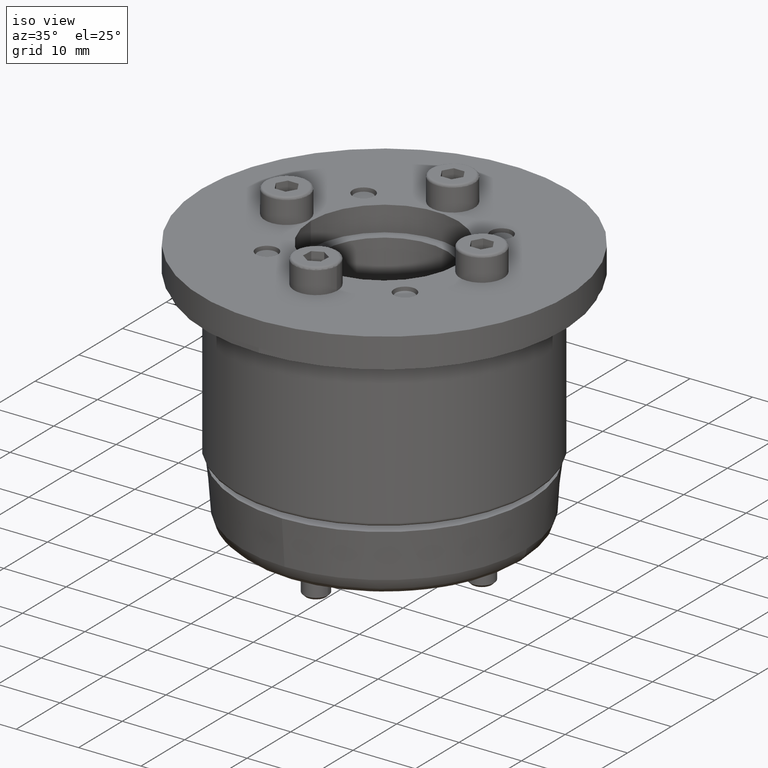
[diagram: clean part render]
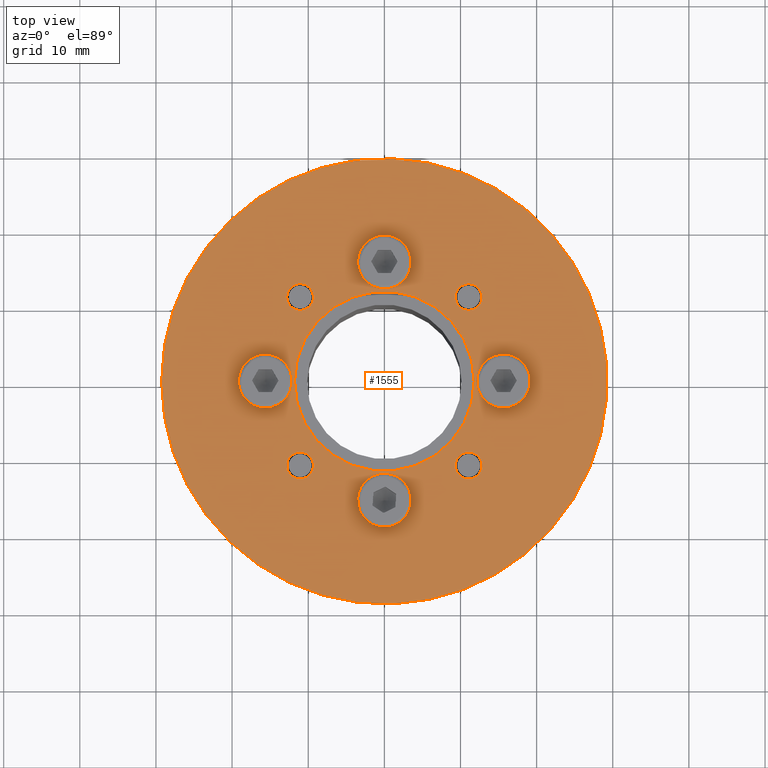
[diagram: tour spotlight — one face highlighted and labeled with its STEP entity id]
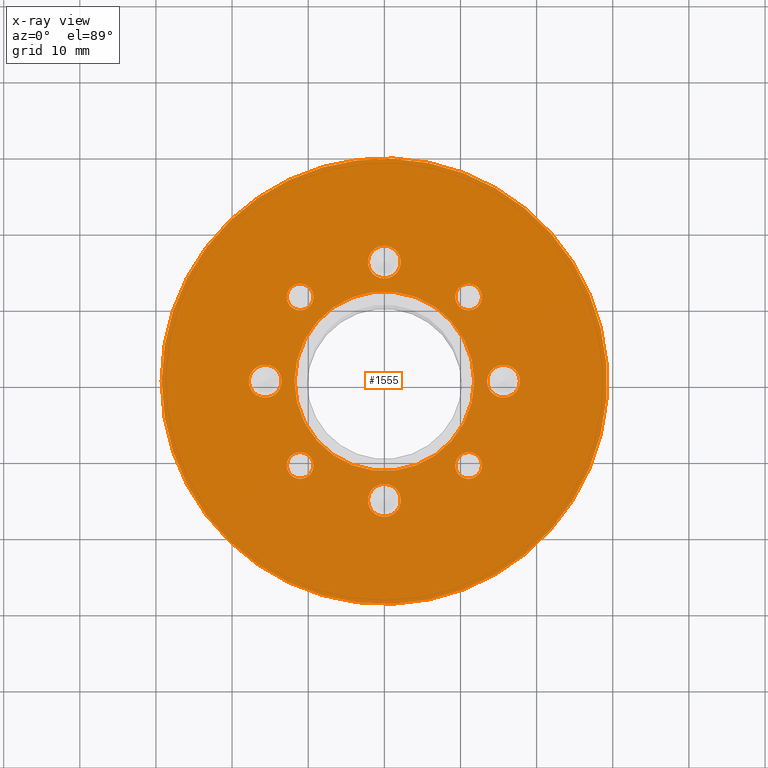
[diagram: x-ray of the same camera — body ghosted, this tour face saturated]
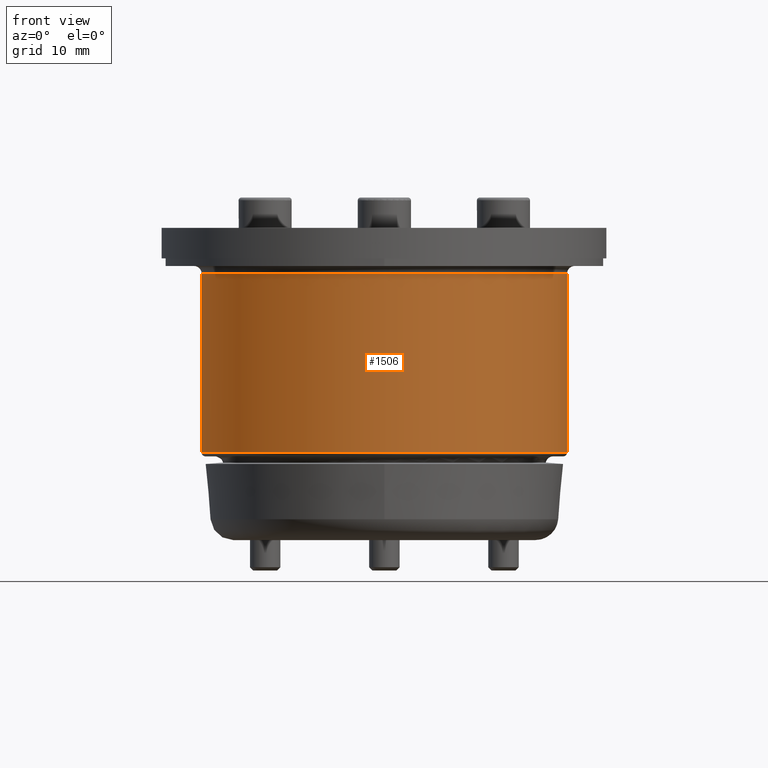
[diagram: tour spotlight — one face highlighted and labeled with its STEP entity id]
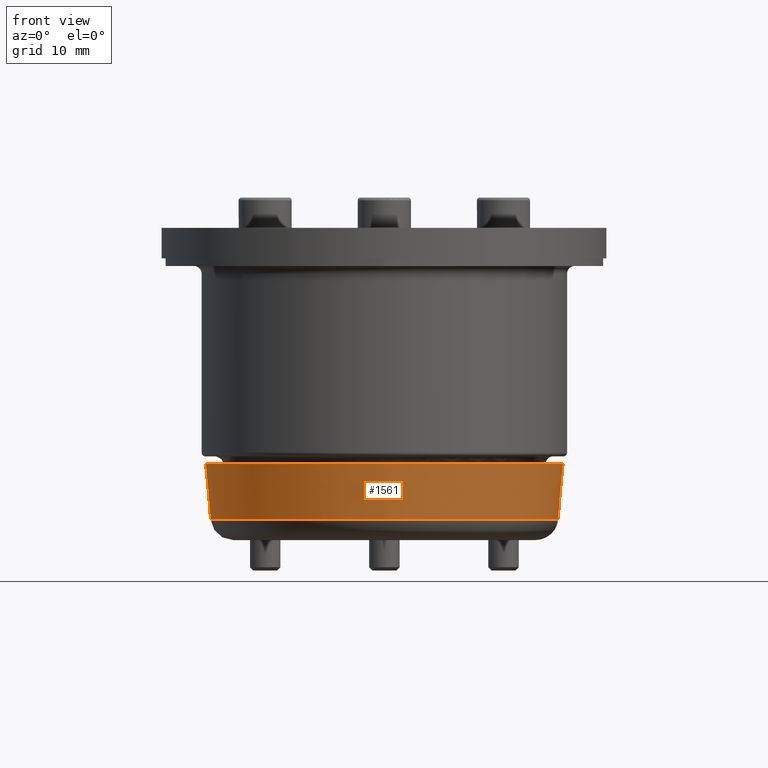
[diagram: tour spotlight — one face highlighted and labeled with its STEP entity id]
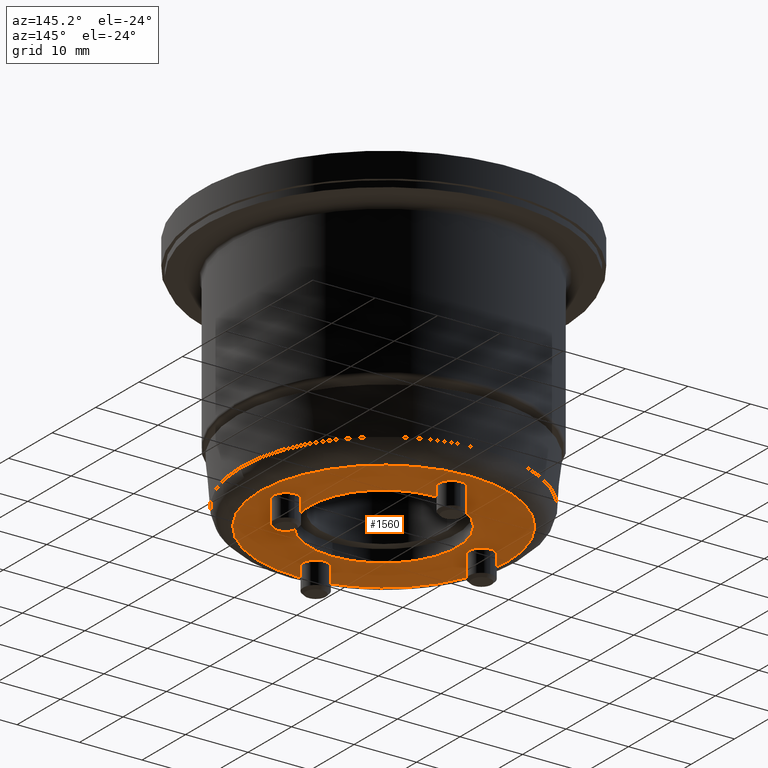
[diagram: tour spotlight — one face highlighted and labeled with its STEP entity id]
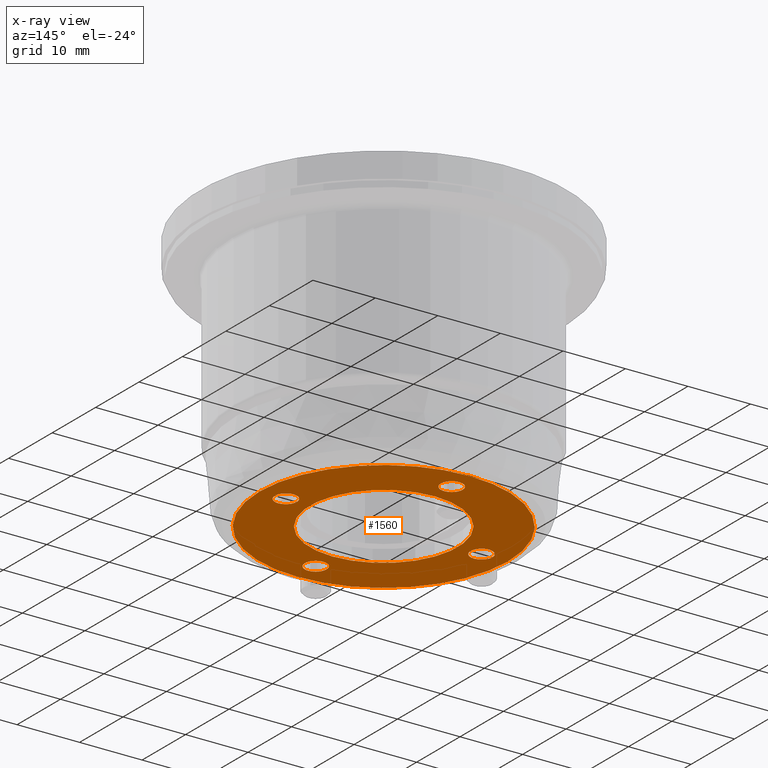
[diagram: x-ray of the same camera — body ghosted, this tour face saturated]
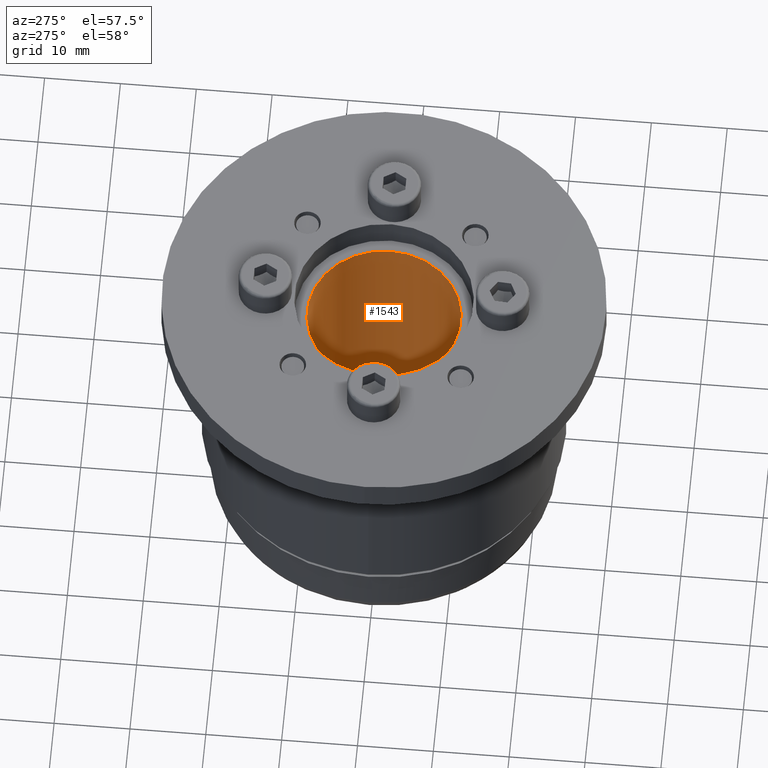
[diagram: tour spotlight — one face highlighted and labeled with its STEP entity id]
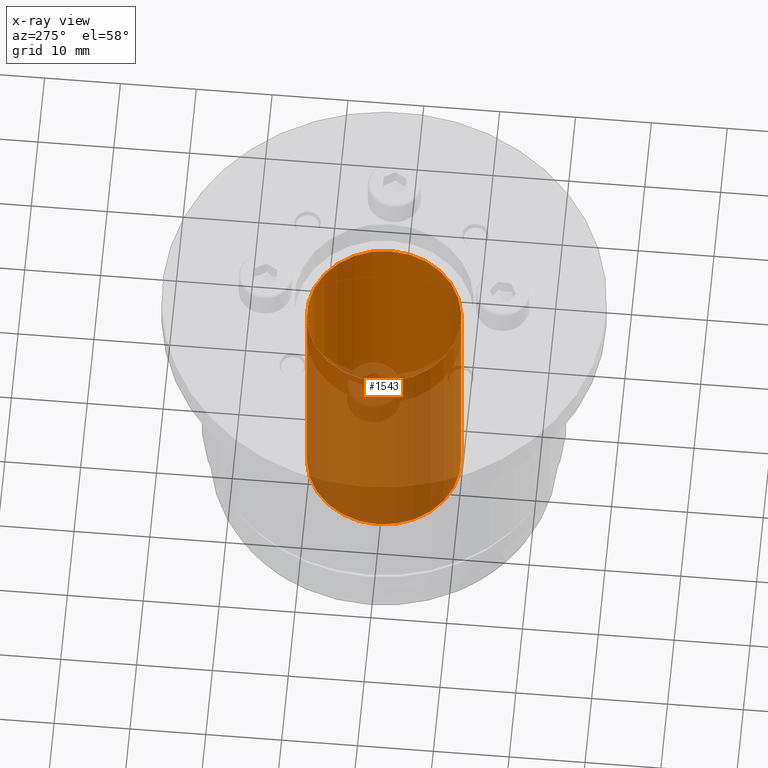
[diagram: x-ray of the same camera — body ghosted, this tour face saturated]
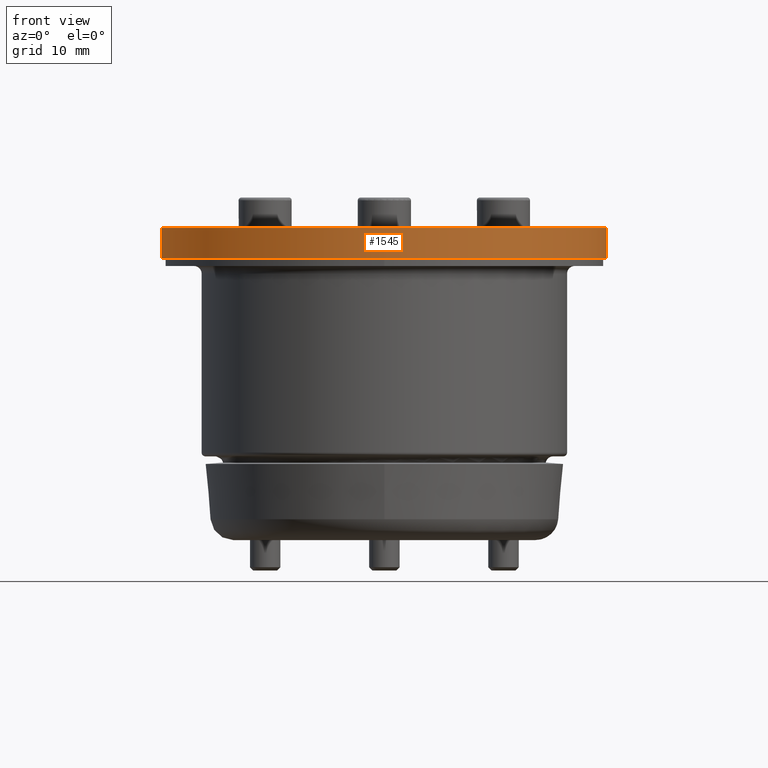
[diagram: tour spotlight — one face highlighted and labeled with its STEP entity id]
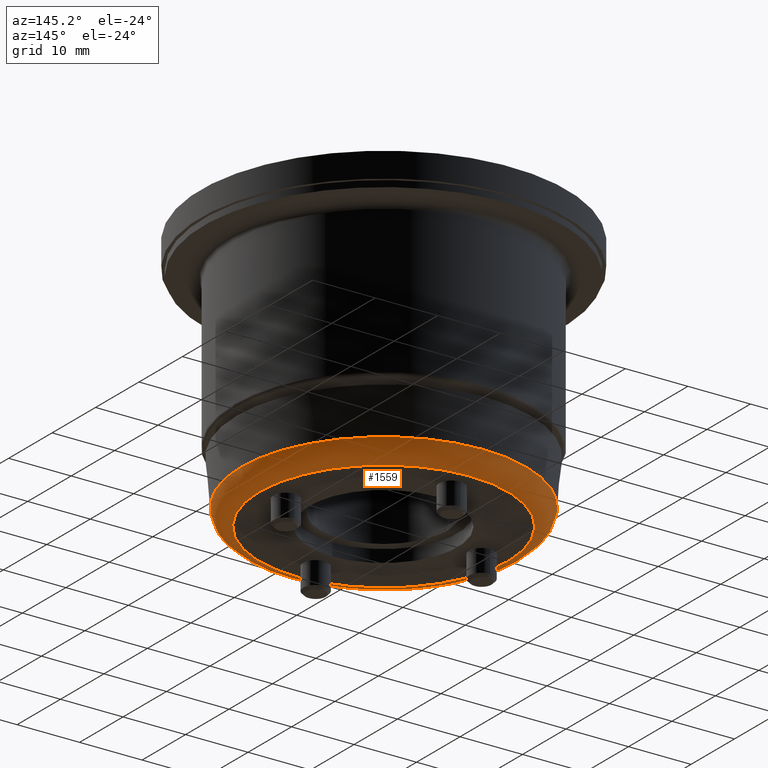
[diagram: tour spotlight — one face highlighted and labeled with its STEP entity id]
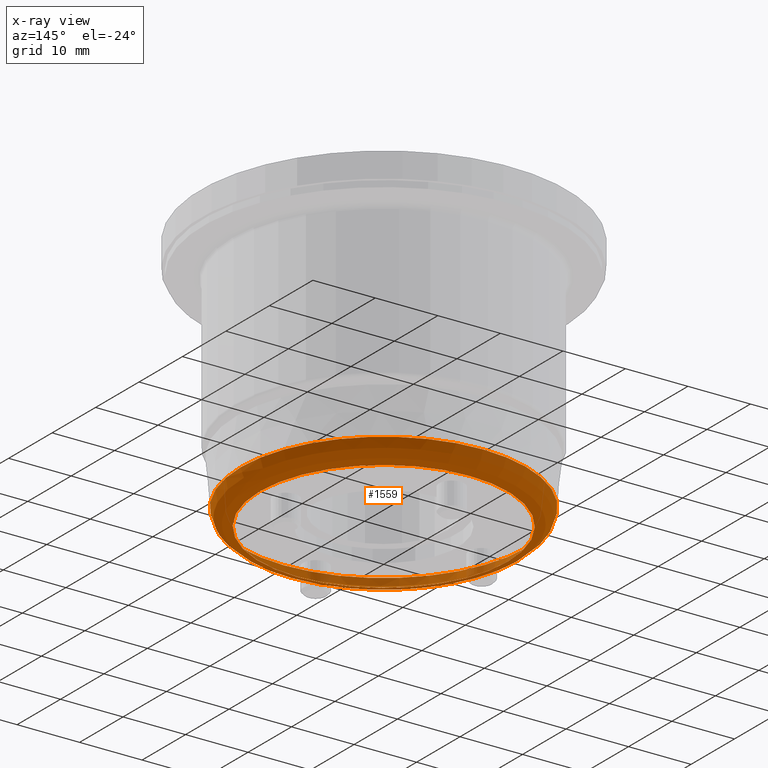
[diagram: x-ray of the same camera — body ghosted, this tour face saturated]
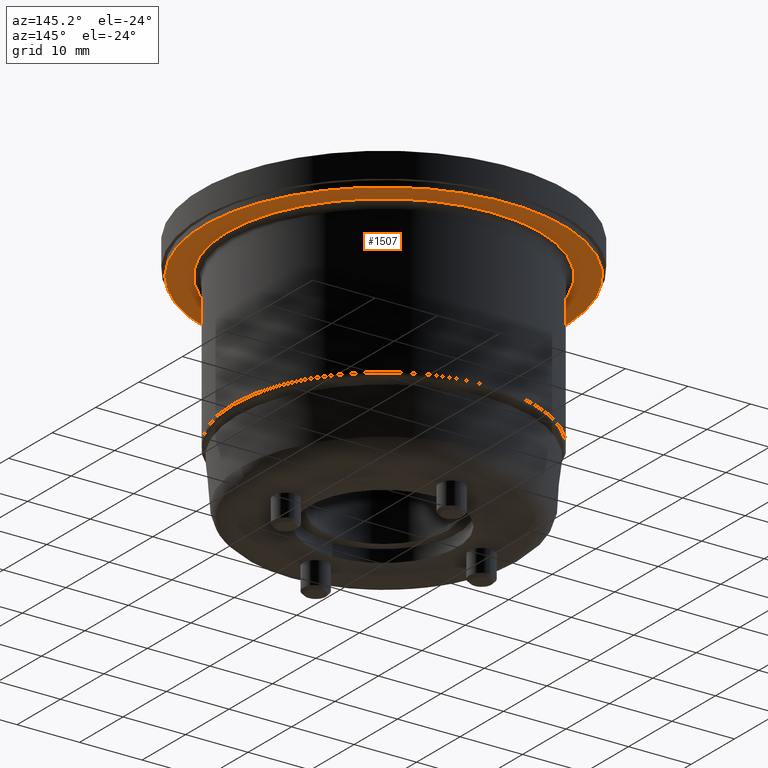
[diagram: tour spotlight — one face highlighted and labeled with its STEP entity id]
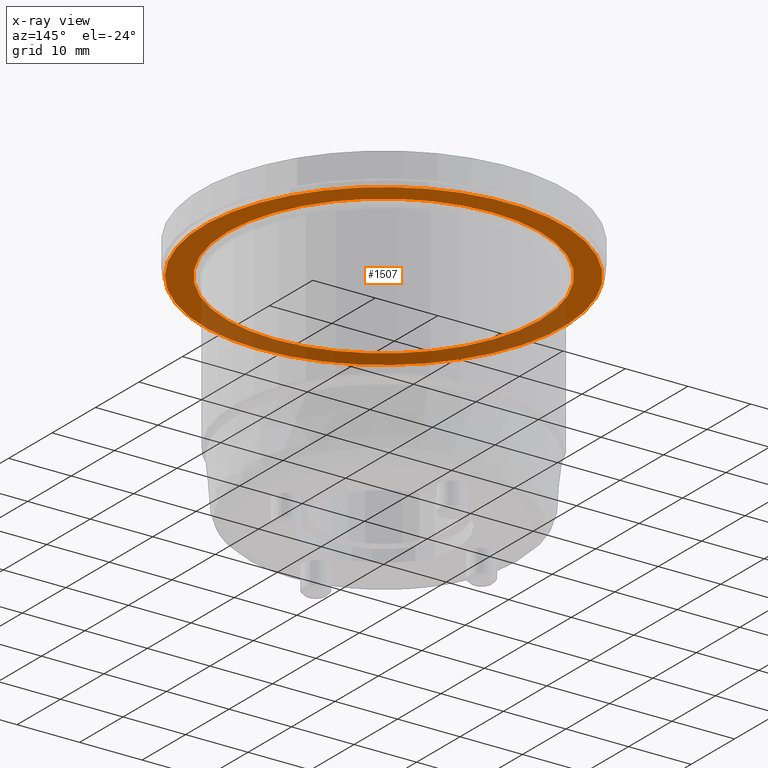
[diagram: x-ray of the same camera — body ghosted, this tour face saturated]
A machine part: a face-by-face anatomy tour. The part has 128 B-rep faces; the first image is the clean iso view, then the 8 largest visible faces are spotlighted one at a time (largest first), each with its STEP entity span.

Face 1 — top view, entity #1555. An x-ray twin of the same camera follows (body ghosted, this face saturated) — the face is partly hidden behind the body. In plain terms, the highlighted planar face has unit normal (-0, 0, 1).
Definition (entity closure, byte-faithful):
#127=FACE_BOUND('',#471,.T.);
#128=FACE_BOUND('',#472,.T.);
#129=FACE_BOUND('',#473,.T.);
#130=FACE_BOUND('',#474,.T.);
#131=FACE_BOUND('',#475,.T.);
#132=FACE_BOUND('',#476,.T.);
#133=FACE_BOUND('',#477,.T.);
#134=FACE_BOUND('',#478,.T.);
#135=FACE_BOUND('',#479,.T.);
#157=PLANE('',#1861);
#362=FACE_OUTER_BOUND('',#470,.T.);
#470=EDGE_LOOP('',(#1326));
#471=EDGE_LOOP('',(#1327));
#472=EDGE_LOOP('',(#1328));
#473=EDGE_LOOP('',(#1329));
#474=EDGE_LOOP('',(#1330));
#475=EDGE_LOOP('',(#1331));
#476=EDGE_LOOP('',(#1332));
#477=EDGE_LOOP('',(#1333));
#478=EDGE_LOOP('',(#1334));
#479=EDGE_LOOP('',(#1335));
#607=CIRCLE('',#1832,11.8);
#608=CIRCLE('',#1834,29.25);
#611=CIRCLE('',#1838,1.75);
#613=CIRCLE('',#1841,1.75);
#615=CIRCLE('',#1844,1.75);
#617=CIRCLE('',#1847,1.75);
#618=CIRCLE('',#1849,2.15);
#620=CIRCLE('',#1852,2.15);
#622=CIRCLE('',#1855,2.15);
#624=CIRCLE('',#1858,2.15);
#751=VERTEX_POINT('',#2749);
#752=VERTEX_POINT('',#2753);
#755=VERTEX_POINT('',#2761);
#757=VERTEX_POINT('',#2767);
#759=VERTEX_POINT('',#2773);
#761=VERTEX_POINT('',#2779);
#762=VERTEX_POINT('',#2783);
#764=VERTEX_POINT('',#2789);
#766=VERTEX_POINT('',#2795);
#768=VERTEX_POINT('',#2801);
#942=EDGE_CURVE('',#751,#751,#607,.F.);
#943=EDGE_CURVE('',#752,#752,#608,.F.);
#948=EDGE_CURVE('',#755,#755,#611,.F.);
#951=EDGE_CURVE('',#757,#757,#613,.F.);
#954=EDGE_CURVE('',#759,#759,#615,.F.);
#957=EDGE_CURVE('',#761,#761,#617,.F.);
#958=EDGE_CURVE('',#762,#762,#618,.F.);
#961=EDGE_CURVE('',#764,#764,#620,.F.);
#964=EDGE_CURVE('',#766,#766,#622,.F.);
#967=EDGE_CURVE('',#768,#768,#624,.F.);
#1326=ORIENTED_EDGE('',*,*,#943,.T.);
#1327=ORIENTED_EDGE('',*,*,#942,.T.);
#1328=ORIENTED_EDGE('',*,*,#948,.T.);
#1329=ORIENTED_EDGE('',*,*,#951,.T.);
#1330=ORIENTED_EDGE('',*,*,#954,.T.);
#1331=ORIENTED_EDGE('',*,*,#957,.T.);
#1332=ORIENTED_EDGE('',*,*,#958,.T.);
#1333=ORIENTED_EDGE('',*,*,#961,.T.);
#1334=ORIENTED_EDGE('',*,*,#964,.T.);
#1335=ORIENTED_EDGE('',*,*,#967,.T.);
#1555=ADVANCED_FACE('',(#362,#127,#128,#129,#130,#131,#132,#133,#134,#135),
#157,.T.);
#1832=AXIS2_PLACEMENT_3D('',#2751,#2247,#2248);
#1834=AXIS2_PLACEMENT_3D('',#2754,#2251,#2252);
#1838=AXIS2_PLACEMENT_3D('',#2763,#2261,#2262);
#1841=AXIS2_PLACEMENT_3D('',#2769,#2268,#2269);
#1844=AXIS2_PLACEMENT_3D('',#2775,#2275,#2276);
#1847=AXIS2_PLACEMENT_3D('',#2781,#2282,#2283);
#1849=AXIS2_PLACEMENT_3D('',#2784,#2286,#2287);
#1852=AXIS2_PLACEMENT_3D('',#2790,#2293,#2294);
#1855=AXIS2_PLACEMENT_3D('',#2796,#2300,#2301);
#1858=AXIS2_PLACEMENT_3D('',#2802,#2307,#2308);
#1861=AXIS2_PLACEMENT_3D('',#2807,#2314,#2315);
#2247=DIRECTION('center_axis',(0.,1.,0.));
#2248=DIRECTION('ref_axis',(-1.,0.,0.));
#2251=DIRECTION('center_axis',(0.,-1.,0.));
#2252=DIRECTION('ref_axis',(-1.,0.,0.));
#2261=DIRECTION('center_axis',(0.,1.,0.));
#2262=DIRECTION('ref_axis',(1.83697019872103E-16,0.,-1.));
#2268=DIRECTION('center_axis',(0.,1.,0.));
#2269=DIRECTION('ref_axis',(1.,0.,1.22464679914735E-16));
#2275=DIRECTION('center_axis',(0.,1.,0.));
#2276=DIRECTION('ref_axis',(-6.12323399573677E-17,0.,1.));
#2282=DIRECTION('center_axis',(0.,1.,0.));
#2283=DIRECTION('ref_axis',(-1.,0.,0.));
#2286=DIRECTION('center_axis',(0.,1.,0.));
#2287=DIRECTION('ref_axis',(1.83697019872103E-16,0.,-1.));
#2293=DIRECTION('center_axis',(0.,1.,0.));
#2294=DIRECTION('ref_axis',(1.,0.,1.22464679914735E-16));
#2300=DIRECTION('center_axis',(0.,1.,0.));
#2301=DIRECTION('ref_axis',(-6.12323399573677E-17,0.,1.));
#2307=DIRECTION('center_axis',(0.,1.,0.));
#2308=DIRECTION('ref_axis',(-1.,0.,0.));
#2314=DIRECTION('center_axis',(0.,1.,0.));
#2315=DIRECTION('ref_axis',(0.,0.,1.));
#2749=CARTESIAN_POINT('',(11.8,-1.49999999999999,-1.44508322299388E-15));
#2751=CARTESIAN_POINT('Origin',(0.,-1.49999999999999,0.));
#2753=CARTESIAN_POINT('',(29.25,-1.49999999999999,3.58209188750601E-15));
#2754=CARTESIAN_POINT('Origin',(0.,-1.49999999999999,0.));
#2761=CARTESIAN_POINT('',(-11.0662211255695,-1.49999999999999,12.8162211255695));
#2763=CARTESIAN_POINT('Origin',(-11.0662211255695,-1.49999999999999,11.0662211255695));
#2767=CARTESIAN_POINT('',(-12.8162211255695,-1.49999999999999,-11.0662211255695));
#2769=CARTESIAN_POINT('Origin',(-11.0662211255695,-1.49999999999999,-11.0662211255695));
#2773=CARTESIAN_POINT('',(11.0662211255695,-1.49999999999999,-12.8162211255695));
#2775=CARTESIAN_POINT('Origin',(11.0662211255695,-1.49999999999999,-11.0662211255695));
#2779=CARTESIAN_POINT('',(12.8162211255695,-1.49999999999999,11.0662211255695));
#2781=CARTESIAN_POINT('Origin',(11.0662211255695,-1.49999999999999,11.0662211255695));
#2783=CARTESIAN_POINT('',(-1.31649530908341E-16,-1.49999999999999,-13.5));
#2784=CARTESIAN_POINT('Origin',(-2.46519032881566E-31,-1.49999999999999,
-15.65));
#2789=CARTESIAN_POINT('',(13.5,-1.49999999999999,-9.58286120332804E-16));
#2790=CARTESIAN_POINT('Origin',(15.65,-1.49999999999999,-9.58286120332804E-16));
#2795=CARTESIAN_POINT('',(1.78492270975727E-15,-1.49999999999999,13.5));
#2796=CARTESIAN_POINT('Origin',(1.91657224066561E-15,-1.49999999999999,
15.65));
#2801=CARTESIAN_POINT('',(-13.5,-1.49999999999999,2.61155929918173E-15));
#2802=CARTESIAN_POINT('Origin',(-15.65,-1.49999999999999,2.87485836099841E-15));
#2807=CARTESIAN_POINT('Origin',(-18.5,-1.49999999999999,0.));

Face 2 — front view, entity #1506. In plain terms, the highlighted cylindrical surface (bore or boss wall) has radius 24 mm, axis along (-0, 0, 1).
Definition (entity closure, byte-faithful):
#66=CYLINDRICAL_SURFACE('',#1724,24.);
#170=LINE('',#2553,#232);
#232=VECTOR('',#2005,22.75);
#313=FACE_OUTER_BOUND('',#402,.T.);
#402=EDGE_LOOP('',(#1079,#1080,#1081,#1082,#1083));
#538=CIRCLE('',#1723,24.);
#539=CIRCLE('',#1725,24.);
#540=CIRCLE('',#1726,24.);
#687=VERTEX_POINT('',#2548);
#688=VERTEX_POINT('',#2552);
#689=VERTEX_POINT('',#2554);
#845=EDGE_CURVE('',#687,#687,#538,.T.);
#846=EDGE_CURVE('',#687,#688,#170,.T.);
#847=EDGE_CURVE('',#689,#688,#539,.T.);
#848=EDGE_CURVE('',#688,#689,#540,.T.);
#1079=ORIENTED_EDGE('',*,*,#845,.F.);
#1080=ORIENTED_EDGE('',*,*,#846,.T.);
#1081=ORIENTED_EDGE('',*,*,#847,.F.);
#1082=ORIENTED_EDGE('',*,*,#848,.F.);
#1083=ORIENTED_EDGE('',*,*,#846,.F.);
#1506=ADVANCED_FACE('',(#313),#66,.T.);
#1723=AXIS2_PLACEMENT_3D('',#2550,#2001,#2002);
#1724=AXIS2_PLACEMENT_3D('',#2551,#2003,#2004);
#1725=AXIS2_PLACEMENT_3D('',#2555,#2006,#2007);
#1726=AXIS2_PLACEMENT_3D('',#2556,#2008,#2009);
#2001=DIRECTION('center_axis',(0.,-1.83697019872103E-16,1.));
#2002=DIRECTION('ref_axis',(-1.,7.65404249467096E-18,0.));
#2003=DIRECTION('center_axis',(0.,0.,1.));
#2004=DIRECTION('ref_axis',(-1.,0.,0.));
#2005=DIRECTION('',(0.,0.,-1.));
#2006=DIRECTION('center_axis',(0.,0.,-1.));
#2007=DIRECTION('ref_axis',(-1.,0.,0.));
#2008=DIRECTION('center_axis',(0.,0.,-1.));
#2009=DIRECTION('ref_axis',(-1.,0.,0.));
#2548=CARTESIAN_POINT('',(24.,3.31056681039412E-15,33.));
#2550=CARTESIAN_POINT('Origin',(-5.55111512312578E-16,5.55111512312578E-16,
33.));
#2551=CARTESIAN_POINT('Origin',(-5.55111512312578E-16,5.55111512312578E-16,
0.));
#2552=CARTESIAN_POINT('',(24.,-2.38404080564107E-15,9.5));
#2553=CARTESIAN_POINT('',(24.,3.49426383026623E-15,0.));
#2554=CARTESIAN_POINT('',(-24.,-2.38404080564107E-15,9.5));
#2555=CARTESIAN_POINT('Origin',(-5.55111512312578E-16,5.55111512312578E-16,
9.5));
#2556=CARTESIAN_POINT('Origin',(-5.55111512312578E-16,5.55111512312578E-16,
9.5));

Face 3 — front view, entity #1561. In plain terms, the highlighted conical surface has half-angle 5 deg.
Definition (entity closure, byte-faithful):
#208=LINE('',#2866,#270);
#270=VECTOR('',#2383,23.0309339709527);
#303=CONICAL_SURFACE('',#1892,23.0309339709527,0.0872664625997165);
#368=FACE_OUTER_BOUND('',#495,.T.);
#495=EDGE_LOOP('',(#1371,#1372,#1373,#1374,#1375,#1376,#1377));
#639=CIRCLE('',#1880,22.833269828598);
#643=CIRCLE('',#1884,22.833269828598);
#644=CIRCLE('',#1885,22.833269828598);
#650=CIRCLE('',#1893,23.4681886855305);
#651=CIRCLE('',#1894,23.4681886855305);
#782=VERTEX_POINT('',#2839);
#783=VERTEX_POINT('',#2840);
#786=VERTEX_POINT('',#2847);
#792=VERTEX_POINT('',#2862);
#793=VERTEX_POINT('',#2863);
#984=EDGE_CURVE('',#782,#783,#639,.T.);
#988=EDGE_CURVE('',#783,#786,#643,.T.);
#989=EDGE_CURVE('',#786,#782,#644,.T.);
#995=EDGE_CURVE('',#792,#793,#650,.T.);
#996=EDGE_CURVE('',#793,#792,#651,.T.);
#997=EDGE_CURVE('',#793,#786,#208,.T.);
#1371=ORIENTED_EDGE('',*,*,#995,.F.);
#1372=ORIENTED_EDGE('',*,*,#996,.F.);
#1373=ORIENTED_EDGE('',*,*,#997,.T.);
#1374=ORIENTED_EDGE('',*,*,#988,.F.);
#1375=ORIENTED_EDGE('',*,*,#984,.F.);
#1376=ORIENTED_EDGE('',*,*,#989,.F.);
#1377=ORIENTED_EDGE('',*,*,#997,.F.);
#1561=ADVANCED_FACE('',(#368),#303,.T.);
#1880=AXIS2_PLACEMENT_3D('',#2841,#2353,#2354);
#1884=AXIS2_PLACEMENT_3D('',#2848,#2361,#2362);
#1885=AXIS2_PLACEMENT_3D('',#2849,#2363,#2364);
#1892=AXIS2_PLACEMENT_3D('',#2861,#2377,#2378);
#1893=AXIS2_PLACEMENT_3D('',#2864,#2379,#2380);
#1894=AXIS2_PLACEMENT_3D('',#2865,#2381,#2382);
#2353=DIRECTION('center_axis',(-6.07788017747373E-18,-1.,6.07788017747373E-18));
#2354=DIRECTION('ref_axis',(1.,-6.07788017747373E-18,0.));
#2361=DIRECTION('center_axis',(-6.07788017747373E-18,-1.,6.07788017747373E-18));
#2362=DIRECTION('ref_axis',(1.,-6.07788017747373E-18,0.));
#2363=DIRECTION('center_axis',(-6.07788017747373E-18,-1.,6.07788017747373E-18));
#2364=DIRECTION('ref_axis',(1.,-6.07788017747373E-18,0.));
#2377=DIRECTION('center_axis',(0.,1.,0.));
#2378=DIRECTION('ref_axis',(-1.,0.,0.));
#2379=DIRECTION('center_axis',(0.,1.,0.));
#2380=DIRECTION('ref_axis',(-1.,0.,0.));
#2381=DIRECTION('center_axis',(0.,1.,0.));
#2382=DIRECTION('ref_axis',(-1.,0.,0.));
#2383=DIRECTION('',(-0.0871557427476582,-0.996194698091746,1.0673500138323E-17));
#2839=CARTESIAN_POINT('',(-54.033269828598,0.738532771757027,-5.59253816193207E-15));
#2840=CARTESIAN_POINT('',(-31.2,0.738532771757027,-22.833269828598));
#2841=CARTESIAN_POINT('Origin',(-31.2,0.738532771757027,-2.79626908096604E-15));
#2847=CARTESIAN_POINT('',(-8.36673017140201,0.738532771757027,-2.79626908096604E-15));
#2848=CARTESIAN_POINT('Origin',(-31.2,0.738532771757027,-2.79626908096604E-15));
#2849=CARTESIAN_POINT('Origin',(-31.2,0.738532771757027,-2.79626908096604E-15));
#2861=CARTESIAN_POINT('Origin',(-31.2,2.99784425725234,0.));
#2862=CARTESIAN_POINT('',(-54.6681886855304,7.99568851450469,0.));
#2863=CARTESIAN_POINT('',(-7.73181131446953,7.99568851450469,-2.8740242155521E-15));
#2864=CARTESIAN_POINT('Origin',(-31.2,7.99568851450469,0.));
#2865=CARTESIAN_POINT('Origin',(-31.2,7.99568851450469,0.));
#2866=CARTESIAN_POINT('',(-8.16906602904726,2.99784425725234,-2.82047595689013E-15));

Face 4 — auxiliary view, entity #1560. An x-ray twin of the same camera follows (body ghosted, this face saturated) — the face is partly hidden behind the body. In plain terms, the highlighted planar face has unit normal (0, -0, -1).
Definition (entity closure, byte-faithful):
#141=FACE_BOUND('',#490,.T.);
#142=FACE_BOUND('',#491,.T.);
#143=FACE_BOUND('',#492,.T.);
#144=FACE_BOUND('',#493,.T.);
#145=FACE_BOUND('',#494,.T.);
#159=PLANE('',#1886);
#367=FACE_OUTER_BOUND('',#489,.T.);
#489=EDGE_LOOP('',(#1364,#1365));
#490=EDGE_LOOP('',(#1366));
#491=EDGE_LOOP('',(#1367));
#492=EDGE_LOOP('',(#1368));
#493=EDGE_LOOP('',(#1369));
#494=EDGE_LOOP('',(#1370));
#641=CIRCLE('',#1882,19.8446857343227);
#642=CIRCLE('',#1883,19.8446857343227);
#645=CIRCLE('',#1887,11.8);
#646=CIRCLE('',#1888,1.75);
#647=CIRCLE('',#1889,1.75);
#648=CIRCLE('',#1890,1.75);
#649=CIRCLE('',#1891,1.75);
#784=VERTEX_POINT('',#2842);
#785=VERTEX_POINT('',#2844);
#787=VERTEX_POINT('',#2851);
#788=VERTEX_POINT('',#2853);
#789=VERTEX_POINT('',#2855);
#790=VERTEX_POINT('',#2857);
#791=VERTEX_POINT('',#2859);
#986=EDGE_CURVE('',#784,#785,#641,.T.);
#987=EDGE_CURVE('',#785,#784,#642,.T.);
#990=EDGE_CURVE('',#787,#787,#645,.T.);
#991=EDGE_CURVE('',#788,#788,#646,.T.);
#992=EDGE_CURVE('',#789,#789,#647,.T.);
#993=EDGE_CURVE('',#790,#790,#648,.T.);
#994=EDGE_CURVE('',#791,#791,#649,.T.);
#1364=ORIENTED_EDGE('',*,*,#987,.F.);
#1365=ORIENTED_EDGE('',*,*,#986,.F.);
#1366=ORIENTED_EDGE('',*,*,#990,.T.);
#1367=ORIENTED_EDGE('',*,*,#991,.T.);
#1368=ORIENTED_EDGE('',*,*,#992,.T.);
#1369=ORIENTED_EDGE('',*,*,#993,.T.);
#1370=ORIENTED_EDGE('',*,*,#994,.T.);
#1560=ADVANCED_FACE('',(#367,#141,#142,#143,#144,#145),#159,.T.);
#1882=AXIS2_PLACEMENT_3D('',#2845,#2357,#2358);
#1883=AXIS2_PLACEMENT_3D('',#2846,#2359,#2360);
#1886=AXIS2_PLACEMENT_3D('',#2850,#2365,#2366);
#1887=AXIS2_PLACEMENT_3D('',#2852,#2367,#2368);
#1888=AXIS2_PLACEMENT_3D('',#2854,#2369,#2370);
#1889=AXIS2_PLACEMENT_3D('',#2856,#2371,#2372);
#1890=AXIS2_PLACEMENT_3D('',#2858,#2373,#2374);
#1891=AXIS2_PLACEMENT_3D('',#2860,#2375,#2376);
#2357=DIRECTION('center_axis',(0.,1.,0.));
#2358=DIRECTION('ref_axis',(1.,0.,1.22464679914735E-16));
#2359=DIRECTION('center_axis',(0.,1.,0.));
#2360=DIRECTION('ref_axis',(1.,0.,1.22464679914735E-16));
#2365=DIRECTION('center_axis',(0.,-1.,0.));
#2366=DIRECTION('ref_axis',(0.,0.,-1.));
#2367=DIRECTION('center_axis',(0.,1.,0.));
#2368=DIRECTION('ref_axis',(-1.,0.,0.));
#2369=DIRECTION('center_axis',(0.,1.,0.));
#2370=DIRECTION('ref_axis',(-1.,0.,0.));
#2371=DIRECTION('center_axis',(0.,1.,0.));
#2372=DIRECTION('ref_axis',(-6.12323399573677E-17,0.,-1.));
#2373=DIRECTION('center_axis',(0.,1.,0.));
#2374=DIRECTION('ref_axis',(1.,0.,-1.22464679914735E-16));
#2375=DIRECTION('center_axis',(0.,1.,0.));
#2376=DIRECTION('ref_axis',(1.83697019872103E-16,0.,1.));
#2842=CARTESIAN_POINT('',(-31.2,-2.,-19.8446857343227));
#2844=CARTESIAN_POINT('',(-51.0446857343227,-2.,0.));
#2845=CARTESIAN_POINT('Origin',(-31.2,-2.,0.));
#2846=CARTESIAN_POINT('Origin',(-31.2,-2.,0.));
#2850=CARTESIAN_POINT('Origin',(-48.7718396281875,-2.,0.));
#2851=CARTESIAN_POINT('',(-19.4,-2.,-1.44508322299388E-15));
#2852=CARTESIAN_POINT('Origin',(-31.2,-2.,0.));
#2853=CARTESIAN_POINT('',(-29.45,-2.,15.65));
#2854=CARTESIAN_POINT('Origin',(-31.2,-2.,15.65));
#2855=CARTESIAN_POINT('',(-46.85,-2.,1.75));
#2856=CARTESIAN_POINT('Origin',(-46.85,-2.,0.));
#2857=CARTESIAN_POINT('',(-32.95,-2.,-15.65));
#2858=CARTESIAN_POINT('Origin',(-31.2,-2.,-15.65));
#2859=CARTESIAN_POINT('',(-15.55,-2.,-1.75));
#2860=CARTESIAN_POINT('Origin',(-15.55,-2.,0.));

Face 5 — auxiliary view, entity #1543. An x-ray twin of the same camera follows (body ghosted, this face saturated) — the face is partly hidden behind the body. In plain terms, the highlighted cylindrical surface (bore or boss wall) has radius 10.15 mm, axis along (-0, 0, 1).
Definition (entity closure, byte-faithful):
#84=CYLINDRICAL_SURFACE('',#1828,10.15);
#196=LINE('',#2744,#258);
#258=VECTOR('',#2239,10.25);
#350=FACE_OUTER_BOUND('',#449,.T.);
#449=EDGE_LOOP('',(#1272,#1273,#1274,#1275));
#531=CIRCLE('',#1715,10.15);
#563=CIRCLE('',#1757,10.15);
#681=VERTEX_POINT('',#2535);
#710=VERTEX_POINT('',#2607);
#838=EDGE_CURVE('',#681,#681,#531,.T.);
#871=EDGE_CURVE('',#710,#710,#563,.F.);
#939=EDGE_CURVE('',#681,#710,#196,.T.);
#1272=ORIENTED_EDGE('',*,*,#838,.F.);
#1273=ORIENTED_EDGE('',*,*,#939,.T.);
#1274=ORIENTED_EDGE('',*,*,#871,.F.);
#1275=ORIENTED_EDGE('',*,*,#939,.F.);
#1543=ADVANCED_FACE('',(#350),#84,.F.);
#1715=AXIS2_PLACEMENT_3D('',#2536,#1985,#1986);
#1757=AXIS2_PLACEMENT_3D('',#2608,#2070,#2071);
#1828=AXIS2_PLACEMENT_3D('',#2743,#2237,#2238);
#1985=DIRECTION('center_axis',(0.,0.,1.));
#1986=DIRECTION('ref_axis',(-1.,0.,0.));
#2070=DIRECTION('center_axis',(0.,0.,1.));
#2071=DIRECTION('ref_axis',(-1.,0.,0.));
#2237=DIRECTION('center_axis',(0.,0.,1.));
#2238=DIRECTION('ref_axis',(-1.,0.,0.));
#2239=DIRECTION('',(0.,0.,1.));
#2535=CARTESIAN_POINT('',(10.15,1.79812801344714E-15,0.));
#2536=CARTESIAN_POINT('Origin',(-5.55111512312578E-16,5.55111512312578E-16,
0.));
#2607=CARTESIAN_POINT('',(10.15,1.79812801344714E-15,35.));
#2608=CARTESIAN_POINT('Origin',(-5.55111512312578E-16,5.55111512312578E-16,
35.));
#2743=CARTESIAN_POINT('Origin',(-5.55111512312578E-16,5.55111512312578E-16,
0.));
#2744=CARTESIAN_POINT('',(10.15,1.79812801344714E-15,0.));

Face 6 — front view, entity #1545. In plain terms, the highlighted cylindrical surface (bore or boss wall) has radius 29.25 mm, axis along (-0, 0, 1).
Definition (entity closure, byte-faithful):
#86=CYLINDRICAL_SURFACE('',#1833,29.25);
#198=LINE('',#2756,#260);
#260=VECTOR('',#2253,24.75);
#352=FACE_OUTER_BOUND('',#451,.T.);
#451=EDGE_LOOP('',(#1280,#1281,#1282,#1283));
#608=CIRCLE('',#1834,29.25);
#609=CIRCLE('',#1835,29.25);
#752=VERTEX_POINT('',#2753);
#753=VERTEX_POINT('',#2755);
#943=EDGE_CURVE('',#752,#752,#608,.F.);
#944=EDGE_CURVE('',#752,#753,#198,.T.);
#945=EDGE_CURVE('',#753,#753,#609,.F.);
#1280=ORIENTED_EDGE('',*,*,#943,.F.);
#1281=ORIENTED_EDGE('',*,*,#944,.T.);
#1282=ORIENTED_EDGE('',*,*,#945,.F.);
#1283=ORIENTED_EDGE('',*,*,#944,.F.);
#1545=ADVANCED_FACE('',(#352),#86,.T.);
#1833=AXIS2_PLACEMENT_3D('',#2752,#2249,#2250);
#1834=AXIS2_PLACEMENT_3D('',#2754,#2251,#2252);
#1835=AXIS2_PLACEMENT_3D('',#2757,#2254,#2255);
#2249=DIRECTION('center_axis',(0.,1.,0.));
#2250=DIRECTION('ref_axis',(-1.,0.,0.));
#2251=DIRECTION('center_axis',(0.,-1.,0.));
#2252=DIRECTION('ref_axis',(-1.,0.,0.));
#2253=DIRECTION('',(0.,-1.,0.));
#2254=DIRECTION('center_axis',(0.,1.,0.));
#2255=DIRECTION('ref_axis',(-1.,0.,0.));
#2752=CARTESIAN_POINT('Origin',(0.,-4.49999999999999,0.));
#2753=CARTESIAN_POINT('',(29.25,-1.49999999999999,3.58209188750601E-15));
#2754=CARTESIAN_POINT('Origin',(0.,-1.49999999999999,0.));
#2755=CARTESIAN_POINT('',(29.25,-5.49999999999999,-3.58209188750601E-15));
#2756=CARTESIAN_POINT('',(29.25,-4.49999999999999,-3.58209188750601E-15));
#2757=CARTESIAN_POINT('Origin',(0.,-5.49999999999999,0.));

Face 7 — auxiliary view, entity #1559. An x-ray twin of the same camera follows (body ghosted, this face saturated) — the face is partly hidden behind the body. In plain terms, the highlighted toroidal blend (fillet) surface has major radius 19.8447 mm and minor (blend) radius 3 mm.
Definition (entity closure, byte-faithful):
#366=FACE_OUTER_BOUND('',#488,.T.);
#488=EDGE_LOOP('',(#1357,#1358,#1359,#1360,#1361,#1362,#1363));
#639=CIRCLE('',#1880,22.833269828598);
#640=CIRCLE('',#1881,3.);
#641=CIRCLE('',#1882,19.8446857343227);
#642=CIRCLE('',#1883,19.8446857343227);
#643=CIRCLE('',#1884,22.833269828598);
#644=CIRCLE('',#1885,22.833269828598);
#782=VERTEX_POINT('',#2839);
#783=VERTEX_POINT('',#2840);
#784=VERTEX_POINT('',#2842);
#785=VERTEX_POINT('',#2844);
#786=VERTEX_POINT('',#2847);
#984=EDGE_CURVE('',#782,#783,#639,.T.);
#985=EDGE_CURVE('',#783,#784,#640,.T.);
#986=EDGE_CURVE('',#784,#785,#641,.T.);
#987=EDGE_CURVE('',#785,#784,#642,.T.);
#988=EDGE_CURVE('',#783,#786,#643,.T.);
#989=EDGE_CURVE('',#786,#782,#644,.T.);
#1357=ORIENTED_EDGE('',*,*,#984,.T.);
#1358=ORIENTED_EDGE('',*,*,#985,.T.);
#1359=ORIENTED_EDGE('',*,*,#986,.T.);
#1360=ORIENTED_EDGE('',*,*,#987,.T.);
#1361=ORIENTED_EDGE('',*,*,#985,.F.);
#1362=ORIENTED_EDGE('',*,*,#988,.T.);
#1363=ORIENTED_EDGE('',*,*,#989,.T.);
#1497=TOROIDAL_SURFACE('',#1879,19.8446857343227,3.);
#1559=ADVANCED_FACE('',(#366),#1497,.T.);
#1879=AXIS2_PLACEMENT_3D('',#2838,#2351,#2352);
#1880=AXIS2_PLACEMENT_3D('',#2841,#2353,#2354);
#1881=AXIS2_PLACEMENT_3D('',#2843,#2355,#2356);
#1882=AXIS2_PLACEMENT_3D('',#2845,#2357,#2358);
#1883=AXIS2_PLACEMENT_3D('',#2846,#2359,#2360);
#1884=AXIS2_PLACEMENT_3D('',#2848,#2361,#2362);
#1885=AXIS2_PLACEMENT_3D('',#2849,#2363,#2364);
#2351=DIRECTION('center_axis',(0.,1.,0.));
#2352=DIRECTION('ref_axis',(0.,0.,1.));
#2353=DIRECTION('center_axis',(-6.07788017747373E-18,-1.,6.07788017747373E-18));
#2354=DIRECTION('ref_axis',(1.,-6.07788017747373E-18,0.));
#2355=DIRECTION('center_axis',(-1.,0.,1.9439497440004E-16));
#2356=DIRECTION('ref_axis',(-1.9439497440004E-16,0.,-1.));
#2357=DIRECTION('center_axis',(0.,1.,0.));
#2358=DIRECTION('ref_axis',(1.,0.,1.22464679914735E-16));
#2359=DIRECTION('center_axis',(0.,1.,0.));
#2360=DIRECTION('ref_axis',(1.,0.,1.22464679914735E-16));
#2361=DIRECTION('center_axis',(-6.07788017747373E-18,-1.,6.07788017747373E-18));
#2362=DIRECTION('ref_axis',(1.,-6.07788017747373E-18,0.));
#2363=DIRECTION('center_axis',(-6.07788017747373E-18,-1.,6.07788017747373E-18));
#2364=DIRECTION('ref_axis',(1.,-6.07788017747373E-18,0.));
#2838=CARTESIAN_POINT('Origin',(-31.2,1.,0.));
#2839=CARTESIAN_POINT('',(-54.033269828598,0.738532771757027,-5.59253816193207E-15));
#2840=CARTESIAN_POINT('',(-31.2,0.738532771757027,-22.833269828598));
#2841=CARTESIAN_POINT('Origin',(-31.2,0.738532771757027,-2.79626908096604E-15));
#2842=CARTESIAN_POINT('',(-31.2,-2.,-19.8446857343227));
#2843=CARTESIAN_POINT('Origin',(-31.2,1.,-19.8446857343227));
#2844=CARTESIAN_POINT('',(-51.0446857343227,-2.,0.));
#2845=CARTESIAN_POINT('Origin',(-31.2,-2.,0.));
#2846=CARTESIAN_POINT('Origin',(-31.2,-2.,0.));
#2847=CARTESIAN_POINT('',(-8.36673017140201,0.738532771757027,-2.79626908096604E-15));
#2848=CARTESIAN_POINT('Origin',(-31.2,0.738532771757027,-2.79626908096604E-15));
#2849=CARTESIAN_POINT('Origin',(-31.2,0.738532771757027,-2.79626908096604E-15));

Face 8 — auxiliary view, entity #1507. An x-ray twin of the same camera follows (body ghosted, this face saturated) — the face is partly hidden behind the body. In plain terms, the highlighted planar face has unit normal (0, -0, -1).
Definition (entity closure, byte-faithful):
#108=FACE_BOUND('',#404,.T.);
#150=PLANE('',#1727);
#314=FACE_OUTER_BOUND('',#403,.T.);
#403=EDGE_LOOP('',(#1084));
#404=EDGE_LOOP('',(#1085));
#536=CIRCLE('',#1721,25.);
#541=CIRCLE('',#1728,28.75);
#686=VERTEX_POINT('',#2546);
#690=VERTEX_POINT('',#2558);
#843=EDGE_CURVE('',#686,#686,#536,.T.);
#849=EDGE_CURVE('',#690,#690,#541,.T.);
#1084=ORIENTED_EDGE('',*,*,#849,.F.);
#1085=ORIENTED_EDGE('',*,*,#843,.F.);
#1507=ADVANCED_FACE('',(#314,#108),#150,.T.);
#1721=AXIS2_PLACEMENT_3D('',#2547,#1997,#1998);
#1727=AXIS2_PLACEMENT_3D('',#2557,#2010,#2011);
#1728=AXIS2_PLACEMENT_3D('',#2559,#2012,#2013);
#1997=DIRECTION('center_axis',(0.,1.83697019872103E-16,-1.));
#1998=DIRECTION('ref_axis',(-1.,7.65404249467096E-18,1.40602479624549E-33));
#2010=DIRECTION('center_axis',(0.,1.83697019872103E-16,-1.));
#2011=DIRECTION('ref_axis',(-1.,0.,0.));
#2012=DIRECTION('center_axis',(0.,-1.83697019872103E-16,1.));
#2013=DIRECTION('ref_axis',(0.,-1.,-1.83697019872103E-16));
#2546=CARTESIAN_POINT('',(25.,-2.88155356779468E-15,34.));
#2547=CARTESIAN_POINT('Origin',(-5.55111512312578E-16,3.71414492440474E-16,
34.));
#2557=CARTESIAN_POINT('Origin',(0.,-24.25,34.));
#2558=CARTESIAN_POINT('',(-3.52085954754864E-15,28.75,34.));
#2559=CARTESIAN_POINT('Origin',(0.,-6.2456986756515E-15,34.));